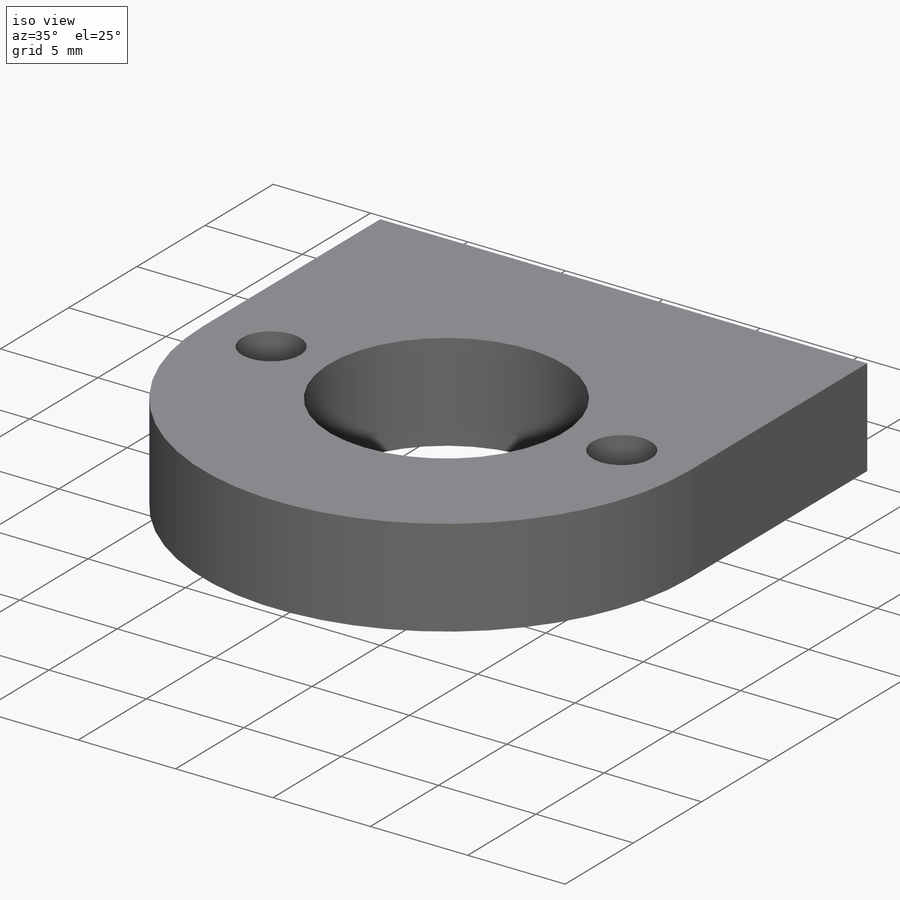
[diagram: iso view]
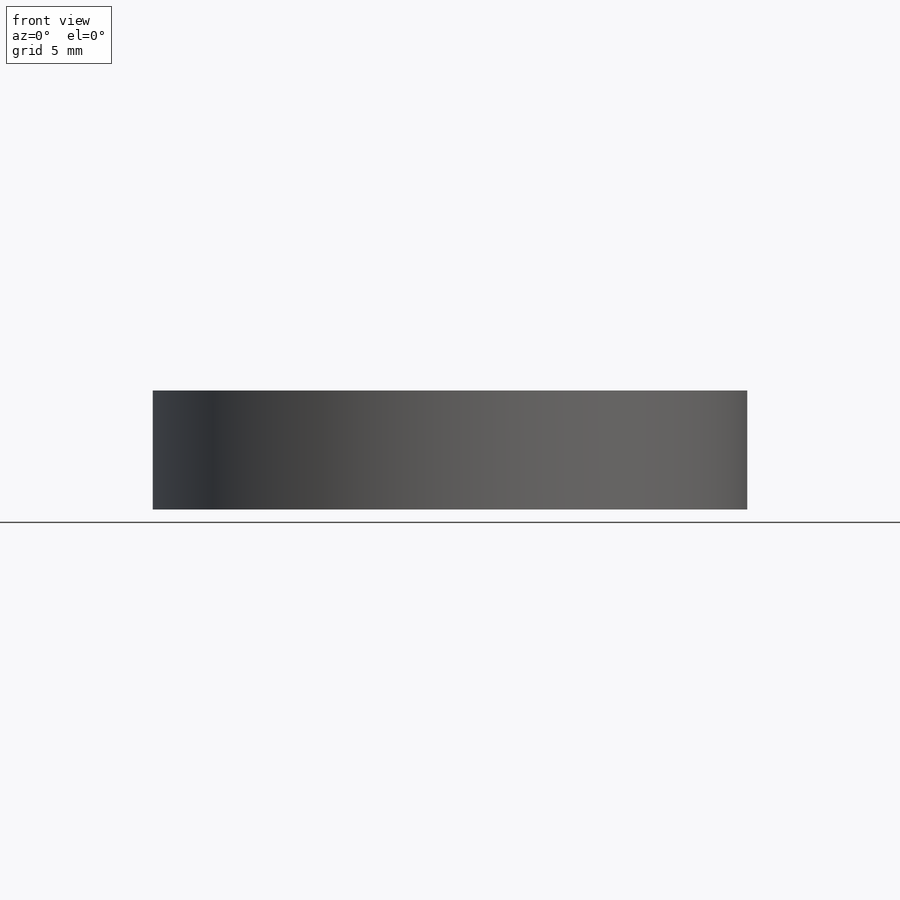
[diagram: front view]
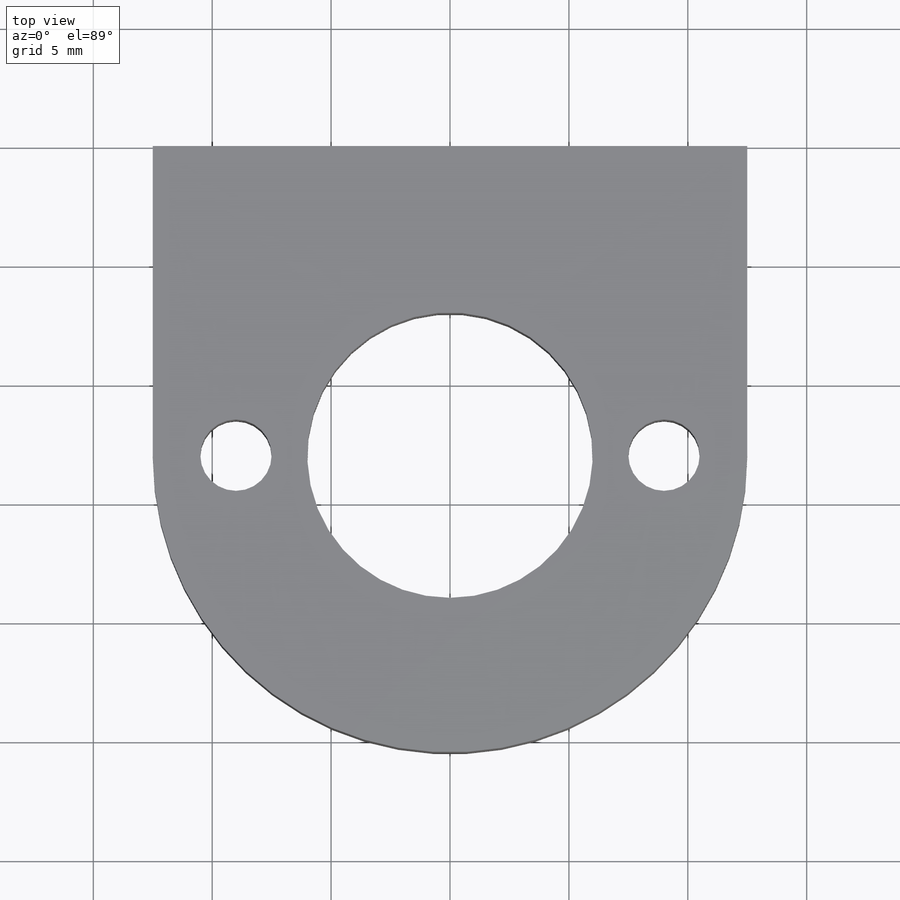
[diagram: top view]
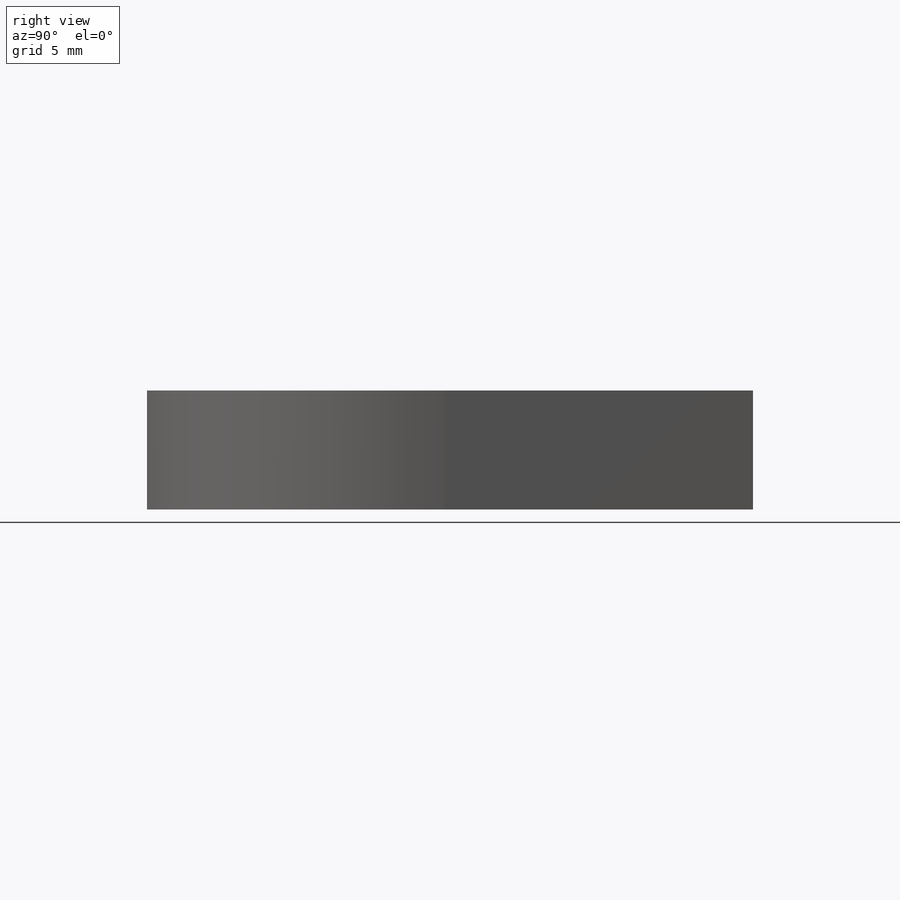
[diagram: right view]
SOLIDWORKS PART (.sldprt)
format: sldprt  version: not decoded by parser v0  size: 256,512 bytes
history: native  units: mm
features: sketch x7, plane x3, extrude x2, cut_extrude x2, thread x2, material x1, hole x1 + 2 further entries (+7 scaffold rows collapsed)
feature tree (27):
  scaffold x7  (default folders/planes/origin — collapsed)
  material  "ｱｸﾘﾙ (中-上級の耐衝撃性)"
  "ｻｰﾌｪｽ ﾎﾞﾃﾞｨ"
  "ｿﾘｯﾄﾞ ﾎﾞﾃﾞｨ"
  plane  "正面"
  plane  "平面"
  plane  "右側面"
  sketch  "ｽｹｯﾁ1"  dims[D1=5.0mm D2=25.0mm]
  extrude  "ﾎﾞｽ - 押し出し1"  Depth=13mm
  sketch  "ｽｹｯﾁ2"
  extrude  "ﾎﾞｽ - 押し出し2"  Depth=5mm
  sketch  "ｽｹｯﾁ3"  dims[D1=12.0mm]
  cut_extrude  "ｶｯﾄ - 押し出し1"  Depth=5mm
  sketch  "ｽｹｯﾁ4"  dims[D1=18.0mm D2=3.0mm D3=3.0mm]
  cut_extrude  "ｶｯﾄ - 押し出し2"  Depth=5mm
  sketch  "ｽｹｯﾁ5"  dims[D1=9.0mm D2=9.0mm]
  hole  "M3x0.5 ねじ穴1"  [1 undecoded]
  sketch  "ｽｹｯﾁ7"
  sketch  "ｽｹｯﾁ6"  dims[hole-wizard template sketch: 46 standard entries collapsed; hole parameters kept: c15.ねじ下穴ﾄﾞﾘﾙ直径=2.5mm c15.ねじ下穴ﾄﾞﾘﾙの深さ=10.0mm c15.D3=~14.816244mm c15.ﾄﾞﾘﾙ角度=118.0deg]
  thread  "穴のねじ山1"  Diameter=7mm  [1 undecoded]
  thread  "穴のねじ山2"  Diameter=7mm  [1 undecoded]
decode coverage: 11 of 14 modeling features carry decoded parameters; 2 rows unclassified (native names shown)
note: ~ marks probable driven/reference dimensions
note: 3 parameter values undecoded
note: suppression state not decoded; provenance and decode notes live in map.json
